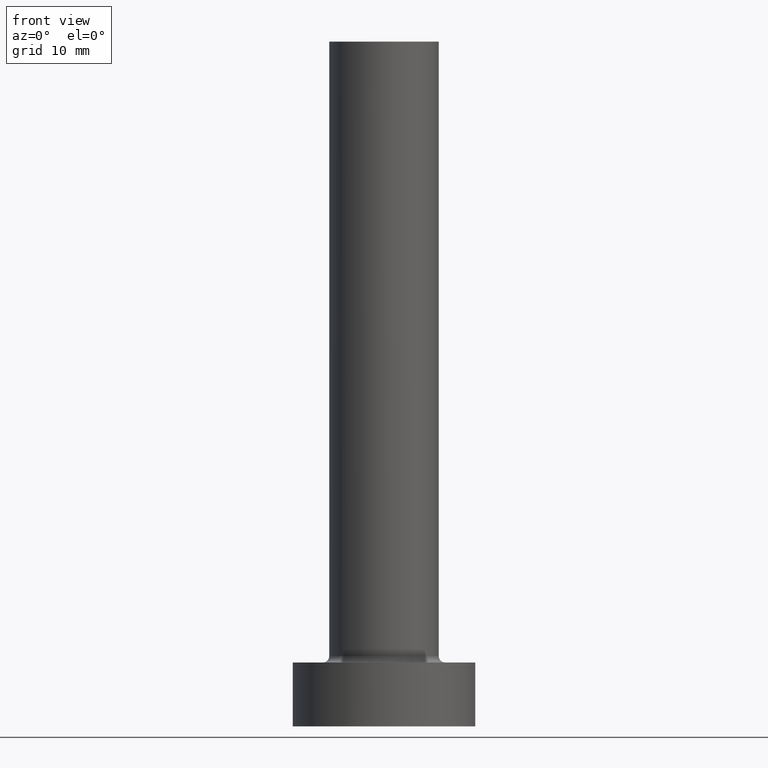
[diagram: clean part render]
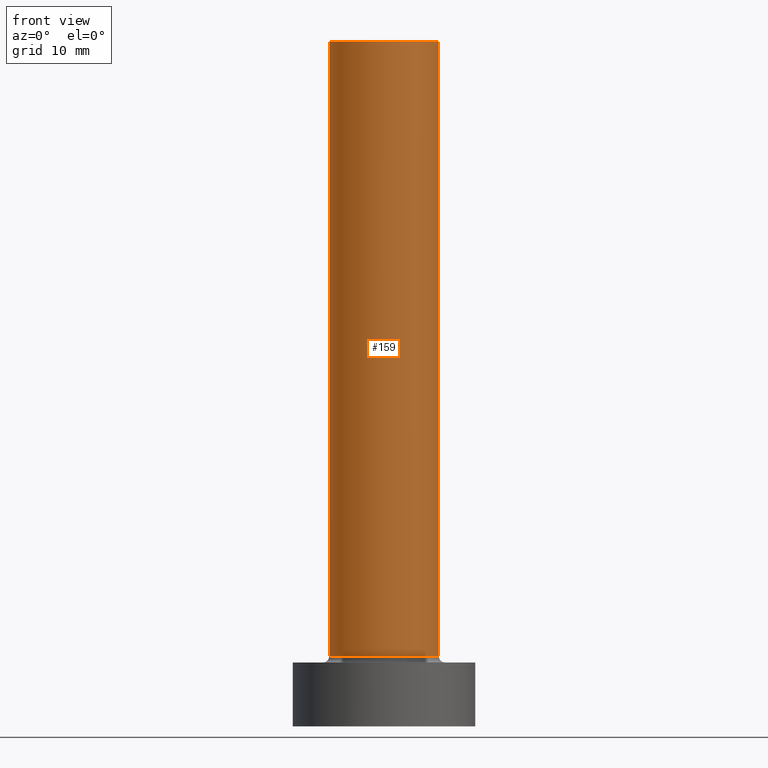
[diagram: same view with one face highlighted and labeled with its STEP entity id]
A machine part, front view. The second image highlights one B-rep face of the part: STEP entity #159.
In plain terms, the highlighted cylindrical surface (partial cylindrical patch) has radius 6 mm, axis along (-0, -0, -1).
Its self-contained STEP definition (entity closure, byte-faithful):
#12 = ORIENTED_EDGE ( 'NONE', *, *, #149, .F. ) ;
#17 = AXIS2_PLACEMENT_3D ( 'NONE', #108, #46, #397 ) ;
#25 = EDGE_LOOP ( 'NONE', ( #249, #12, #191, #283 ) ) ;
#37 = DIRECTION ( 'NONE',  ( -0.000000000000000000, -0.000000000000000000, -1.000000000000000000 ) ) ;
#40 = CARTESIAN_POINT ( 'NONE',  ( 0.000000000000000000, 0.000000000000000000, 7.699999999999998401 ) ) ;
#42 = AXIS2_PLACEMENT_3D ( 'NONE', #40, #426, #180 ) ;
#43 = EDGE_CURVE ( 'NONE', #414, #72, #155, .T. ) ;
#46 = DIRECTION ( 'NONE',  ( -0.000000000000000000, -0.000000000000000000, -1.000000000000000000 ) ) ;
#47 = DIRECTION ( 'NONE',  ( -0.000000000000000000, -0.000000000000000000, -1.000000000000000000 ) ) ;
#68 = CARTESIAN_POINT ( 'NONE',  ( -6.000000000000000888, 0.000000000000000000, 7.699999999999998401 ) ) ;
#72 = VERTEX_POINT ( 'NONE', #68 ) ;
#76 = FACE_OUTER_BOUND ( 'NONE', #25, .T. ) ;
#94 = CARTESIAN_POINT ( 'NONE',  ( 6.000000000000000888, 7.347880794884120722E-16, 7.699999999999998401 ) ) ;
#105 = DIRECTION ( 'NONE',  ( 0.000000000000000000, 0.000000000000000000, 1.000000000000000000 ) ) ;
#106 = DIRECTION ( 'NONE',  ( 1.000000000000000000, 0.000000000000000000, 0.000000000000000000 ) ) ;
#108 = CARTESIAN_POINT ( 'NONE',  ( 0.000000000000000000, 0.000000000000000000, 75.00000000000001421 ) ) ;
#112 = VERTEX_POINT ( 'NONE', #94 ) ;
#113 = EDGE_CURVE ( 'NONE', #169, #112, #244, .T. ) ;
#149 = EDGE_CURVE ( 'NONE', #414, #169, #362, .T. ) ;
#155 = LINE ( 'NONE', #367, #197 ) ;
#159 = ADVANCED_FACE ( 'NONE', ( #76 ), #364, .T. ) ;
#162 = AXIS2_PLACEMENT_3D ( 'NONE', #461, #105, #106 ) ;
#169 = VERTEX_POINT ( 'NONE', #366 ) ;
#180 = DIRECTION ( 'NONE',  ( 1.000000000000000000, 0.000000000000000000, 0.000000000000000000 ) ) ;
#185 = VECTOR ( 'NONE', #37, 1000.000000000000000 ) ;
#191 = ORIENTED_EDGE ( 'NONE', *, *, #43, .T. ) ;
#197 = VECTOR ( 'NONE', #47, 1000.000000000000000 ) ;
#209 = CARTESIAN_POINT ( 'NONE',  ( 6.000000000000000888, 7.347880794884120722E-16, 75.00000000000001421 ) ) ;
#230 = CIRCLE ( 'NONE', #42, 6.000000000000000888 ) ;
#244 = LINE ( 'NONE', #209, #185 ) ;
#249 = ORIENTED_EDGE ( 'NONE', *, *, #113, .F. ) ;
#250 = CARTESIAN_POINT ( 'NONE',  ( -6.000000000000000888, 0.000000000000000000, 75.00000000000001421 ) ) ;
#283 = ORIENTED_EDGE ( 'NONE', *, *, #398, .T. ) ;
#362 = CIRCLE ( 'NONE', #162, 6.000000000000000888 ) ;
#364 = CYLINDRICAL_SURFACE ( 'NONE', #17, 6.000000000000000888 ) ;
#366 = CARTESIAN_POINT ( 'NONE',  ( 6.000000000000000888, 7.347880794884120722E-16, 75.00000000000001421 ) ) ;
#367 = CARTESIAN_POINT ( 'NONE',  ( -6.000000000000000888, 0.000000000000000000, 75.00000000000001421 ) ) ;
#397 = DIRECTION ( 'NONE',  ( -1.000000000000000000, 0.000000000000000000, 0.000000000000000000 ) ) ;
#398 = EDGE_CURVE ( 'NONE', #72, #112, #230, .T. ) ;
#414 = VERTEX_POINT ( 'NONE', #250 ) ;
#426 = DIRECTION ( 'NONE',  ( 0.000000000000000000, 0.000000000000000000, 1.000000000000000000 ) ) ;
#461 = CARTESIAN_POINT ( 'NONE',  ( 0.000000000000000000, 0.000000000000000000, 75.00000000000001421 ) ) ;